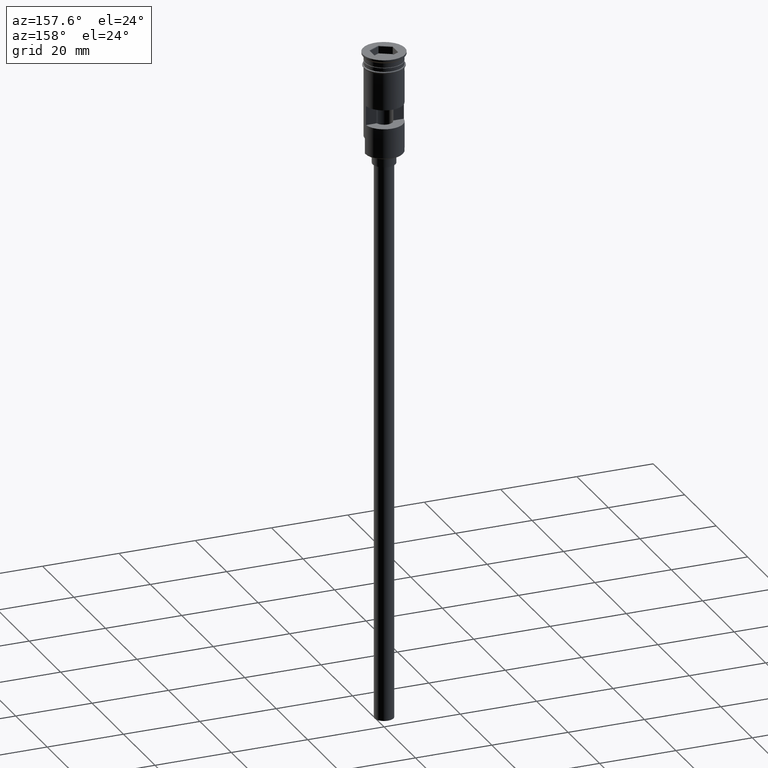
[diagram: clean part render]
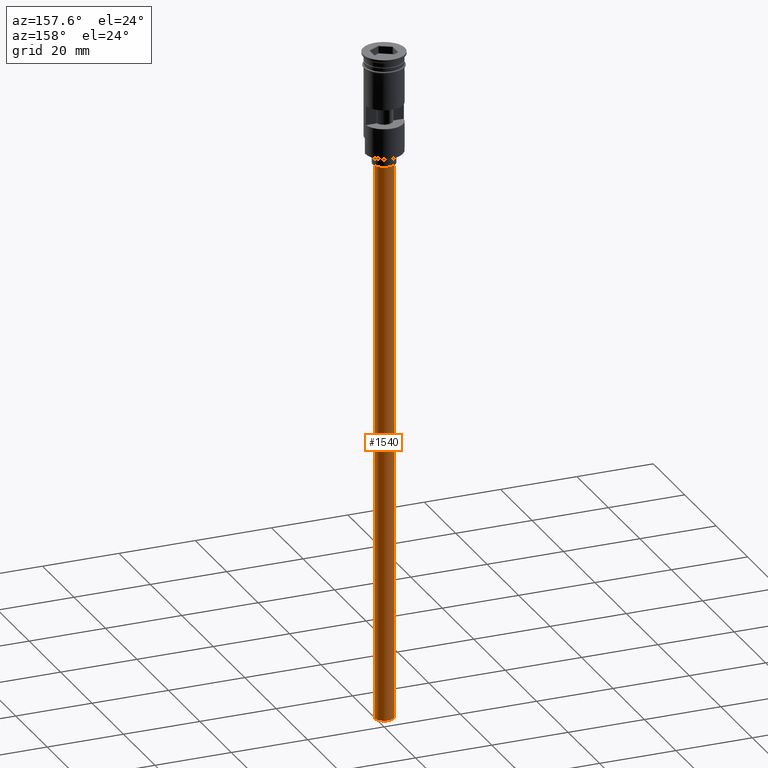
[diagram: same view with one face highlighted and labeled with its STEP entity id]
A machine part, auxiliary view. The second image highlights one B-rep face of the part: STEP entity #1540.
In plain terms, the highlighted cylindrical surface (edge-blend (fillet) strip) has radius 2.5 mm, axis along (-0, -0, 1).
Its self-contained STEP definition (entity closure, byte-faithful):
#11 = LINE ( 'NONE', #1476, #856 ) ;
#123 = DIRECTION ( 'NONE',  ( 0.000000000000000000, 0.000000000000000000, -1.000000000000000000 ) ) ;
#141 = DIRECTION ( 'NONE',  ( -1.000000000000000000, 0.000000000000000000, 0.000000000000000000 ) ) ;
#194 = ORIENTED_EDGE ( 'NONE', *, *, #1182, .F. ) ;
#226 = CARTESIAN_POINT ( 'NONE',  ( -2.500000000000000000, 3.061616997868383141E-16, -176.5000000000000000 ) ) ;
#286 = VERTEX_POINT ( 'NONE', #527 ) ;
#335 = LINE ( 'NONE', #226, #671 ) ;
#451 = DIRECTION ( 'NONE',  ( 1.000000000000000000, 0.000000000000000000, 0.000000000000000000 ) ) ;
#475 = DIRECTION ( 'NONE',  ( -0.000000000000000000, -0.000000000000000000, 1.000000000000000000 ) ) ;
#527 = CARTESIAN_POINT ( 'NONE',  ( 2.500000000000000000, 0.000000000000000000, -29.50000000000000000 ) ) ;
#568 = DIRECTION ( 'NONE',  ( -0.000000000000000000, -0.000000000000000000, 1.000000000000000000 ) ) ;
#602 = CARTESIAN_POINT ( 'NONE',  ( 0.000000000000000000, 0.000000000000000000, -29.50000000000000000 ) ) ;
#629 = DIRECTION ( 'NONE',  ( -1.000000000000000000, 0.000000000000000000, 0.000000000000000000 ) ) ;
#671 = VECTOR ( 'NONE', #1181, 1000.000000000000000 ) ;
#708 = ORIENTED_EDGE ( 'NONE', *, *, #1513, .T. ) ;
#735 = CARTESIAN_POINT ( 'NONE',  ( 0.000000000000000000, 0.000000000000000000, -176.5000000000000000 ) ) ;
#824 = VERTEX_POINT ( 'NONE', #859 ) ;
#856 = VECTOR ( 'NONE', #475, 1000.000000000000000 ) ;
#859 = CARTESIAN_POINT ( 'NONE',  ( -2.500000000000000000, 3.061616997868383141E-16, -176.5000000000000000 ) ) ;
#882 = CIRCLE ( 'NONE', #1426, 2.500000000000000000 ) ;
#918 = EDGE_CURVE ( 'NONE', #1149, #286, #11, .T. ) ;
#966 = VERTEX_POINT ( 'NONE', #979 ) ;
#979 = CARTESIAN_POINT ( 'NONE',  ( -2.500000000000000000, 3.061616997868383141E-16, -29.50000000000000000 ) ) ;
#1057 = AXIS2_PLACEMENT_3D ( 'NONE', #1558, #568, #451 ) ;
#1069 = CYLINDRICAL_SURFACE ( 'NONE', #1057, 2.500000000000000000 ) ;
#1096 = DIRECTION ( 'NONE',  ( 0.000000000000000000, 0.000000000000000000, -1.000000000000000000 ) ) ;
#1118 = AXIS2_PLACEMENT_3D ( 'NONE', #602, #1096, #629 ) ;
#1121 = ORIENTED_EDGE ( 'NONE', *, *, #918, .F. ) ;
#1149 = VERTEX_POINT ( 'NONE', #1470 ) ;
#1152 = ORIENTED_EDGE ( 'NONE', *, *, #1186, .T. ) ;
#1181 = DIRECTION ( 'NONE',  ( -0.000000000000000000, -0.000000000000000000, 1.000000000000000000 ) ) ;
#1182 = EDGE_CURVE ( 'NONE', #824, #1149, #882, .T. ) ;
#1186 = EDGE_CURVE ( 'NONE', #966, #286, #1530, .T. ) ;
#1189 = FACE_OUTER_BOUND ( 'NONE', #1310, .T. ) ;
#1310 = EDGE_LOOP ( 'NONE', ( #194, #708, #1152, #1121 ) ) ;
#1426 = AXIS2_PLACEMENT_3D ( 'NONE', #735, #123, #141 ) ;
#1470 = CARTESIAN_POINT ( 'NONE',  ( 2.500000000000000000, 0.000000000000000000, -176.5000000000000000 ) ) ;
#1476 = CARTESIAN_POINT ( 'NONE',  ( 2.500000000000000000, 0.000000000000000000, -176.5000000000000000 ) ) ;
#1513 = EDGE_CURVE ( 'NONE', #824, #966, #335, .T. ) ;
#1530 = CIRCLE ( 'NONE', #1118, 2.500000000000000000 ) ;
#1540 = ADVANCED_FACE ( 'NONE', ( #1189 ), #1069, .T. ) ;
#1558 = CARTESIAN_POINT ( 'NONE',  ( 0.000000000000000000, 0.000000000000000000, -176.5000000000000000 ) ) ;